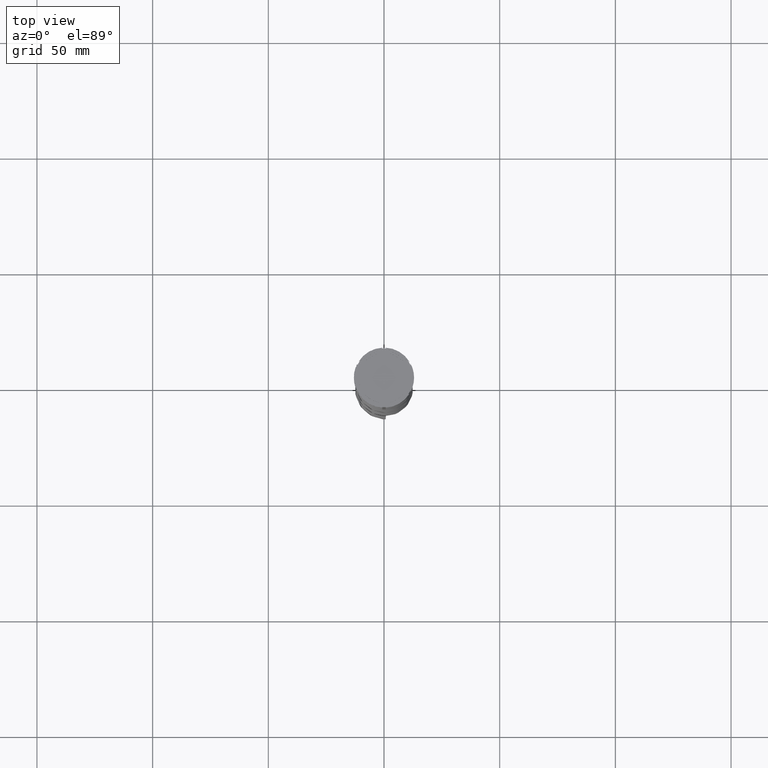
[diagram: clean part render]
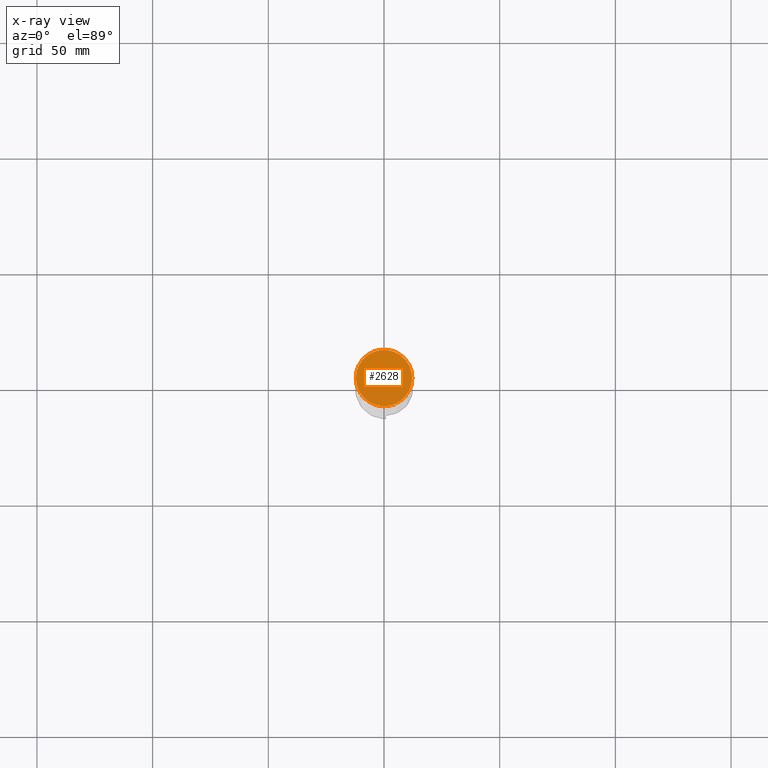
[diagram: x-ray — body ghosted, one internal face saturated and labeled with its STEP entity id]
A machine part, top view, then the same camera in x-ray: the body is ghosted and one INTERNAL B-rep face — a face not visible from any outside direction — is saturated and labeled: STEP entity #2628.
In plain terms, the highlighted planar face has unit normal (0, 0, -1).
Its self-contained STEP definition (entity closure, byte-faithful):
#208 = DIRECTION ( 'NONE',  ( -0.000000000000000000, -0.000000000000000000, 1.000000000000000000 ) ) ;
#610 = CARTESIAN_POINT ( 'NONE',  ( -12.20000000000000639, 0.000000000000000000, -12.00000000000000000 ) ) ;
#1033 = CIRCLE ( 'NONE', #2437, 12.20000000000000639 ) ;
#1083 = DIRECTION ( 'NONE',  ( -1.000000000000000000, 0.000000000000000000, 0.000000000000000000 ) ) ;
#1111 = PLANE ( 'NONE',  #1707 ) ;
#1707 = AXIS2_PLACEMENT_3D ( 'NONE', #3832, #2515, #3895 ) ;
#1909 = EDGE_CURVE ( 'NONE', #3265, #2022, #3214, .T. ) ;
#2022 = VERTEX_POINT ( 'NONE', #610 ) ;
#2247 = EDGE_CURVE ( 'NONE', #2022, #3265, #1033, .T. ) ;
#2437 = AXIS2_PLACEMENT_3D ( 'NONE', #3204, #2760, #1083 ) ;
#2515 = DIRECTION ( 'NONE',  ( 0.000000000000000000, 0.000000000000000000, -1.000000000000000000 ) ) ;
#2628 = ADVANCED_FACE ( 'NONE', ( #4234 ), #1111, .F. ) ;
#2760 = DIRECTION ( 'NONE',  ( -0.000000000000000000, -0.000000000000000000, 1.000000000000000000 ) ) ;
#2789 = AXIS2_PLACEMENT_3D ( 'NONE', #2923, #208, #4427 ) ;
#2923 = CARTESIAN_POINT ( 'NONE',  ( 0.000000000000000000, 0.000000000000000000, -12.00000000000000000 ) ) ;
#2993 = CARTESIAN_POINT ( 'NONE',  ( 12.20000000000000639, 1.512438796946981880E-15, -12.00000000000000000 ) ) ;
#3204 = CARTESIAN_POINT ( 'NONE',  ( 0.000000000000000000, 0.000000000000000000, -12.00000000000000000 ) ) ;
#3214 = CIRCLE ( 'NONE', #2789, 12.20000000000000639 ) ;
#3265 = VERTEX_POINT ( 'NONE', #2993 ) ;
#3682 = EDGE_LOOP ( 'NONE', ( #4208, #4481 ) ) ;
#3832 = CARTESIAN_POINT ( 'NONE',  ( 0.000000000000000000, 0.000000000000000000, -12.00000000000000000 ) ) ;
#3895 = DIRECTION ( 'NONE',  ( -1.000000000000000000, 0.000000000000000000, -0.000000000000000000 ) ) ;
#4208 = ORIENTED_EDGE ( 'NONE', *, *, #2247, .T. ) ;
#4234 = FACE_OUTER_BOUND ( 'NONE', #3682, .T. ) ;
#4427 = DIRECTION ( 'NONE',  ( -1.000000000000000000, 0.000000000000000000, 0.000000000000000000 ) ) ;
#4481 = ORIENTED_EDGE ( 'NONE', *, *, #1909, .T. ) ;